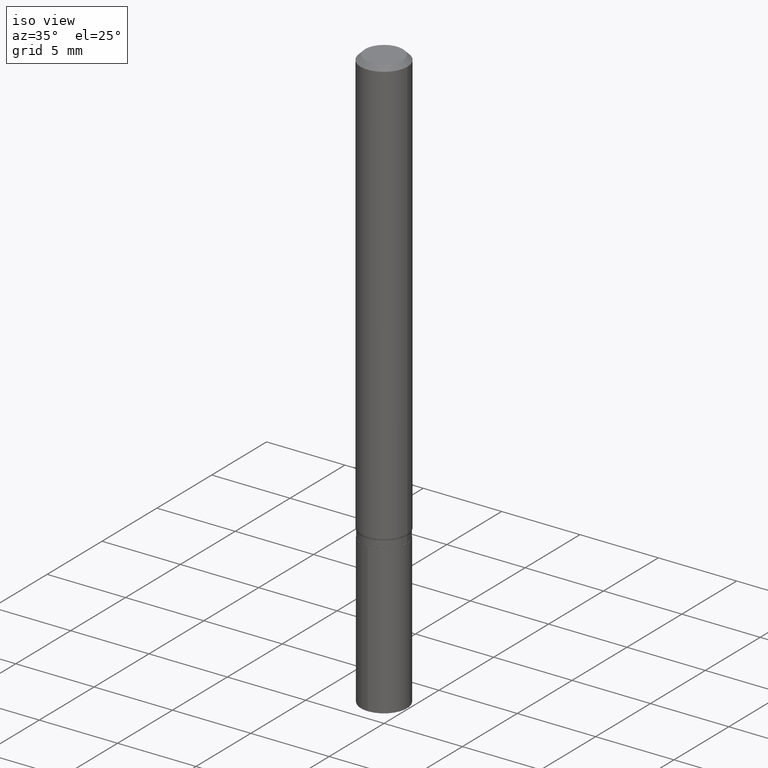
[diagram: clean part render]
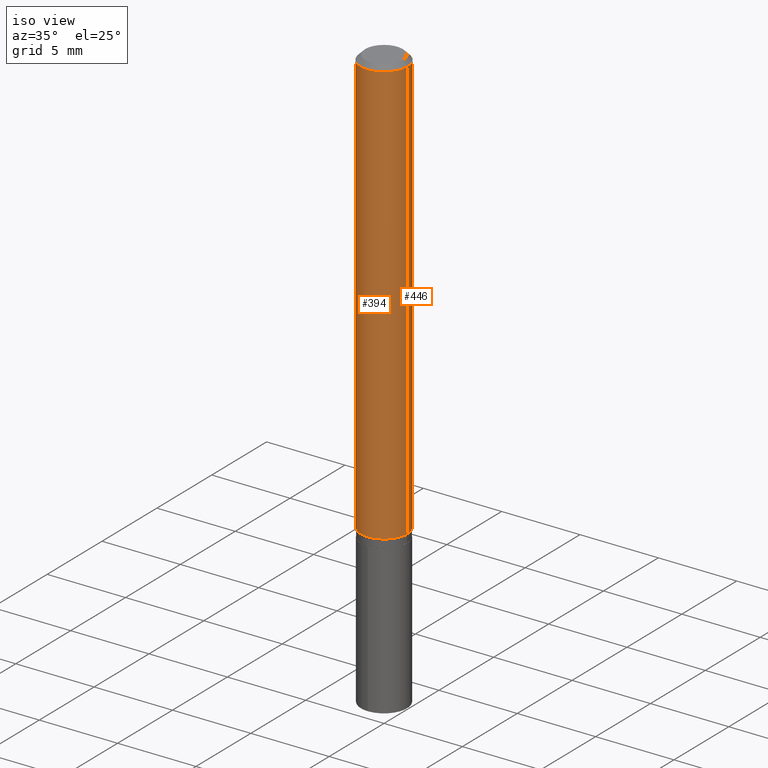
[diagram: same view with one multi-face feature highlighted, each face labeled with its STEP entity id]
A machine part, iso view. The highlighted faces form ONE feature: a constant-radius fillet chain: 2 tangent blend faces with common blend radius 1.4999 mm. The faces share edges in the B-rep.
Their STEP definitions:
[1] entity #446 (Cylinder):
#45 = CARTESIAN_POINT ( 'NONE',  ( -0.05904999999999999832, -1.473560755423358858E-15, -0.01181000000000006871 ) ) ;
#52 = DIRECTION ( 'NONE',  ( -2.445468806185136597E-29, 3.491481338843145583E-15, 1.000000000000000000 ) ) ;
#61 = VERTEX_POINT ( 'NONE', #391 ) ;
#67 = VERTEX_POINT ( 'NONE', #45 ) ;
#70 = ORIENTED_EDGE ( 'NONE', *, *, #437, .T. ) ;
#90 = CYLINDRICAL_SURFACE ( 'NONE', #466, 0.05905000000000006771 ) ;
#93 = CARTESIAN_POINT ( 'NONE',  ( -0.05905000000000006771, 4.195754854663396409E-16, -2.904631170795525045E-30 ) ) ;
#109 = EDGE_LOOP ( 'NONE', ( #70, #341, #132, #415 ) ) ;
#131 = LINE ( 'NONE', #93, #406 ) ;
#132 = ORIENTED_EDGE ( 'NONE', *, *, #244, .F. ) ;
#161 = VECTOR ( 'NONE', #436, 39.37007874015748143 ) ;
#166 = DIRECTION ( 'NONE',  ( -2.445468806185136877E-29, 3.491481338843145188E-15, 1.000000000000000000 ) ) ;
#168 = CARTESIAN_POINT ( 'NONE',  ( 0.000000000000000000, 0.000000000000000000, 0.000000000000000000 ) ) ;
#176 = DIRECTION ( 'NONE',  ( -2.445468806185136597E-29, 3.491481338843145583E-15, 1.000000000000000000 ) ) ;
#182 = EDGE_CURVE ( 'NONE', #61, #67, #131, .T. ) ;
#198 = CIRCLE ( 'NONE', #261, 0.05905000000000013016 ) ;
#213 = CARTESIAN_POINT ( 'NONE',  ( 0.05905000000000013016, -4.157382033285035472E-15, -1.072621539030916837 ) ) ;
#214 = DIRECTION ( 'NONE',  ( 1.000000000000000000, -6.982962677686265133E-15, 0.000000000000000000 ) ) ;
#227 = VERTEX_POINT ( 'NONE', #213 ) ;
#244 = EDGE_CURVE ( 'NONE', #407, #67, #303, .T. ) ;
#258 = CARTESIAN_POINT ( 'NONE',  ( 0.05905000000000006771, -4.123439461173745257E-16, 2.879382386107503723E-30 ) ) ;
#261 = AXIS2_PLACEMENT_3D ( 'NONE', #284, #52, #214 ) ;
#272 = CARTESIAN_POINT ( 'NONE',  ( 0.05904999999999999832, -4.535783407291118600E-16, -0.01181000000000006871 ) ) ;
#284 = CARTESIAN_POINT ( 'NONE',  ( 2.623062514542399904E-29, -3.745038087167660552E-15, -1.072621539030916837 ) ) ;
#286 = FACE_OUTER_BOUND ( 'NONE', #109, .T. ) ;
#292 = AXIS2_PLACEMENT_3D ( 'NONE', #321, #472, #361 ) ;
#303 = CIRCLE ( 'NONE', #292, 0.05904999999999999832 ) ;
#321 = CARTESIAN_POINT ( 'NONE',  ( 2.888098660104663328E-31, -4.123439461173779030E-17, -0.01181000000000006871 ) ) ;
#341 = ORIENTED_EDGE ( 'NONE', *, *, #182, .T. ) ;
#361 = DIRECTION ( 'NONE',  ( 1.000000000000000000, -6.982962677686266711E-15, 0.000000000000000000 ) ) ;
#363 = DIRECTION ( 'NONE',  ( 1.000000000000000000, -6.982962677686266711E-15, 4.876176775795936353E-29 ) ) ;
#372 = LINE ( 'NONE', #258, #161 ) ;
#391 = CARTESIAN_POINT ( 'NONE',  ( -0.05905000000000013016, -3.325462601701321059E-15, -1.072621539030916837 ) ) ;
#406 = VECTOR ( 'NONE', #166, 39.37007874015748143 ) ;
#407 = VERTEX_POINT ( 'NONE', #272 ) ;
#415 = ORIENTED_EDGE ( 'NONE', *, *, #484, .F. ) ;
#436 = DIRECTION ( 'NONE',  ( -2.445468806185136877E-29, 3.491481338843145188E-15, 1.000000000000000000 ) ) ;
#437 = EDGE_CURVE ( 'NONE', #227, #61, #198, .T. ) ;
#446 = ADVANCED_FACE ( 'NONE', ( #286 ), #90, .T. ) ;
#466 = AXIS2_PLACEMENT_3D ( 'NONE', #168, #176, #363 ) ;
#472 = DIRECTION ( 'NONE',  ( -2.445468806185136597E-29, 3.491481338843145583E-15, 1.000000000000000000 ) ) ;
#484 = EDGE_CURVE ( 'NONE', #227, #407, #372, .T. ) ;
[2] entity #394 (Cylinder):
#17 = EDGE_CURVE ( 'NONE', #61, #227, #276, .T. ) ;
#31 = ORIENTED_EDGE ( 'NONE', *, *, #484, .T. ) ;
#45 = CARTESIAN_POINT ( 'NONE',  ( -0.05904999999999999832, -1.473560755423358858E-15, -0.01181000000000006871 ) ) ;
#49 = DIRECTION ( 'NONE',  ( 1.000000000000000000, -6.982962677686266711E-15, 0.000000000000000000 ) ) ;
#61 = VERTEX_POINT ( 'NONE', #391 ) ;
#67 = VERTEX_POINT ( 'NONE', #45 ) ;
#85 = CARTESIAN_POINT ( 'NONE',  ( 2.888098660104663328E-31, -4.123439461173779030E-17, -0.01181000000000006871 ) ) ;
#93 = CARTESIAN_POINT ( 'NONE',  ( -0.05905000000000006771, 4.195754854663396409E-16, -2.904631170795525045E-30 ) ) ;
#118 = DIRECTION ( 'NONE',  ( 1.000000000000000000, -6.982962677686266711E-15, 4.876176775795936353E-29 ) ) ;
#131 = LINE ( 'NONE', #93, #406 ) ;
#144 = EDGE_LOOP ( 'NONE', ( #337, #378, #31, #273 ) ) ;
#150 = FACE_OUTER_BOUND ( 'NONE', #144, .T. ) ;
#156 = CARTESIAN_POINT ( 'NONE',  ( 2.623062514542399904E-29, -3.745038087167660552E-15, -1.072621539030916837 ) ) ;
#161 = VECTOR ( 'NONE', #436, 39.37007874015748143 ) ;
#162 = EDGE_CURVE ( 'NONE', #67, #407, #478, .T. ) ;
#166 = DIRECTION ( 'NONE',  ( -2.445468806185136877E-29, 3.491481338843145188E-15, 1.000000000000000000 ) ) ;
#182 = EDGE_CURVE ( 'NONE', #61, #67, #131, .T. ) ;
#193 = CYLINDRICAL_SURFACE ( 'NONE', #332, 0.05905000000000006771 ) ;
#199 = CARTESIAN_POINT ( 'NONE',  ( 0.000000000000000000, 0.000000000000000000, 0.000000000000000000 ) ) ;
#213 = CARTESIAN_POINT ( 'NONE',  ( 0.05905000000000013016, -4.157382033285035472E-15, -1.072621539030916837 ) ) ;
#227 = VERTEX_POINT ( 'NONE', #213 ) ;
#258 = CARTESIAN_POINT ( 'NONE',  ( 0.05905000000000006771, -4.123439461173745257E-16, 2.879382386107503723E-30 ) ) ;
#272 = CARTESIAN_POINT ( 'NONE',  ( 0.05904999999999999832, -4.535783407291118600E-16, -0.01181000000000006871 ) ) ;
#273 = ORIENTED_EDGE ( 'NONE', *, *, #162, .F. ) ;
#275 = DIRECTION ( 'NONE',  ( 1.000000000000000000, -6.982962677686265133E-15, 0.000000000000000000 ) ) ;
#276 = CIRCLE ( 'NONE', #291, 0.05905000000000013016 ) ;
#291 = AXIS2_PLACEMENT_3D ( 'NONE', #156, #460, #275 ) ;
#302 = AXIS2_PLACEMENT_3D ( 'NONE', #85, #396, #49 ) ;
#332 = AXIS2_PLACEMENT_3D ( 'NONE', #199, #352, #118 ) ;
#337 = ORIENTED_EDGE ( 'NONE', *, *, #182, .F. ) ;
#352 = DIRECTION ( 'NONE',  ( -2.445468806185136597E-29, 3.491481338843145583E-15, 1.000000000000000000 ) ) ;
#372 = LINE ( 'NONE', #258, #161 ) ;
#378 = ORIENTED_EDGE ( 'NONE', *, *, #17, .T. ) ;
#391 = CARTESIAN_POINT ( 'NONE',  ( -0.05905000000000013016, -3.325462601701321059E-15, -1.072621539030916837 ) ) ;
#394 = ADVANCED_FACE ( 'NONE', ( #150 ), #193, .T. ) ;
#396 = DIRECTION ( 'NONE',  ( -2.445468806185136597E-29, 3.491481338843145583E-15, 1.000000000000000000 ) ) ;
#406 = VECTOR ( 'NONE', #166, 39.37007874015748143 ) ;
#407 = VERTEX_POINT ( 'NONE', #272 ) ;
#436 = DIRECTION ( 'NONE',  ( -2.445468806185136877E-29, 3.491481338843145188E-15, 1.000000000000000000 ) ) ;
#460 = DIRECTION ( 'NONE',  ( -2.445468806185136597E-29, 3.491481338843145583E-15, 1.000000000000000000 ) ) ;
#478 = CIRCLE ( 'NONE', #302, 0.05904999999999999832 ) ;
#484 = EDGE_CURVE ( 'NONE', #227, #407, #372, .T. ) ;